MODEL slx_f4e1ad3f925a
KIND model
CONFIG AbsTol = auto
CONFIG EnableMultiTasking = off
CONFIG FixedStep = auto
CONFIG MaxStep = auto
CONFIG MinStep = auto
CONFIG RelTol = 1e-3
CONFIG SampleTimeConstraint = Unconstrained
CONFIG SolverName = VariableStepAuto
CONFIG StartTime = 0.0
CONFIG StopTime = 10.0
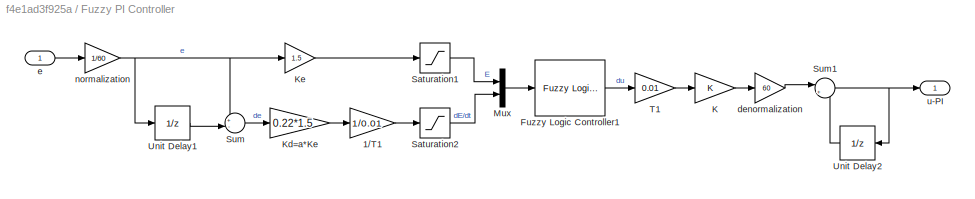
BLOCK [SubSystem] Fuzzy PI Controller
  Ports = [1, 1]
  RequestExecContextInheritance = off
BLOCK [Gain] Fuzzy PI Controller/1//T1
  Gain = 1/0.01
BLOCK [Reference] Fuzzy PI Controller/Fuzzy Logic Controller1  REF=fuzblock/Fuzzy Logic   (lib defined in mdl_858b3b3e7478)
Controller
  Ports = [1, 1]
  SourceBlock = fuzblock/Fuzzy Logic \nController
  SourceProductBaseCode = FL
  SourceType = Fuzzy Inference System
BLOCK [Gain] Fuzzy PI Controller/K
BLOCK [Gain] Fuzzy PI Controller/Kd=a*Ke
  Gain = 0.22*1.5
BLOCK [Gain] Fuzzy PI Controller/Ke
  Gain = 1.5
BLOCK [Mux] Fuzzy PI Controller/Mux
  DisplayOption = bar
  Inputs = 2
  Ports = [2, 1]
BLOCK [Saturate] Fuzzy PI Controller/Saturation1
  LowerLimit = -1
  UpperLimit = 1
BLOCK [Saturate] Fuzzy PI Controller/Saturation2
  LowerLimit = -1
  UpperLimit = 1
BLOCK [Sum] Fuzzy PI Controller/Sum
  Inputs = +-|
  Ports = [2, 1]
BLOCK [Sum] Fuzzy PI Controller/Sum1
  Inputs = |++
  Ports = [2, 1]
BLOCK [Gain] Fuzzy PI Controller/T1
  Gain = 0.01
BLOCK [UnitDelay] Fuzzy PI Controller/Unit Delay1
  HasFrameUpgradeWarning = on
  SampleTime = -1
BLOCK [UnitDelay] Fuzzy PI Controller/Unit Delay2
  HasFrameUpgradeWarning = on
  SampleTime = -1
BLOCK [Gain] Fuzzy PI Controller/denormalization
  Gain = 60
BLOCK [Inport] Fuzzy PI Controller/e
BLOCK [Gain] Fuzzy PI Controller/normalization
  Gain = 1/60
BLOCK [Outport] Fuzzy PI Controller/u-PI
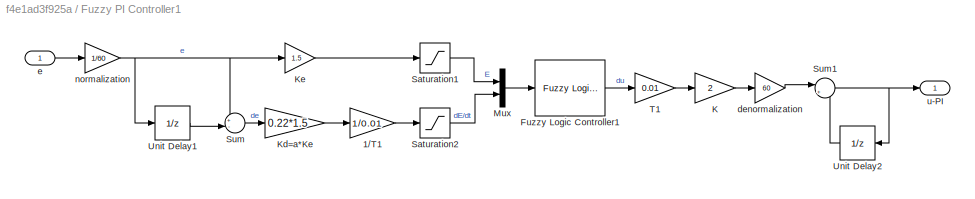
BLOCK [SubSystem] Fuzzy PI Controller1
  Ports = [1, 1]
  RequestExecContextInheritance = off
BLOCK [Gain] Fuzzy PI Controller1/1//T1
  Gain = 1/0.01
BLOCK [Reference] Fuzzy PI Controller1/Fuzzy Logic Controller1  REF=fuzblock/Fuzzy Logic   (lib defined in mdl_858b3b3e7478)
Controller
  Ports = [1, 1]
  SourceBlock = fuzblock/Fuzzy Logic \nController
  SourceProductBaseCode = FL
  SourceType = Fuzzy Inference System
BLOCK [Gain] Fuzzy PI Controller1/K
  Gain = 2
BLOCK [Gain] Fuzzy PI Controller1/Kd=a*Ke
  Gain = 0.22*1.5
BLOCK [Gain] Fuzzy PI Controller1/Ke
  Gain = 1.5
BLOCK [Mux] Fuzzy PI Controller1/Mux
  DisplayOption = bar
  Inputs = 2
  Ports = [2, 1]
BLOCK [Saturate] Fuzzy PI Controller1/Saturation1
  LowerLimit = -1
  UpperLimit = 1
BLOCK [Saturate] Fuzzy PI Controller1/Saturation2
  LowerLimit = -1
  UpperLimit = 1
BLOCK [Sum] Fuzzy PI Controller1/Sum
  Inputs = +-|
  Ports = [2, 1]
BLOCK [Sum] Fuzzy PI Controller1/Sum1
  Inputs = |++
  Ports = [2, 1]
BLOCK [Gain] Fuzzy PI Controller1/T1
  Gain = 0.01
BLOCK [UnitDelay] Fuzzy PI Controller1/Unit Delay1
  HasFrameUpgradeWarning = on
  SampleTime = -1
BLOCK [UnitDelay] Fuzzy PI Controller1/Unit Delay2
  HasFrameUpgradeWarning = on
  SampleTime = -1
BLOCK [Gain] Fuzzy PI Controller1/denormalization
  Gain = 60
BLOCK [Inport] Fuzzy PI Controller1/e
BLOCK [Gain] Fuzzy PI Controller1/normalization
  Gain = 1/60
BLOCK [Outport] Fuzzy PI Controller1/u-PI
BLOCK [SubSystem] Fuzzy PI Controller2
  Ports = [1, 1]
  RequestExecContextInheritance = off
BLOCK [Gain] Fuzzy PI Controller2/1//T1
  Gain = 1/0.01
BLOCK [Reference] Fuzzy PI Controller2/Fuzzy Logic Controller1  REF=fuzblock/Fuzzy Logic   (lib defined in mdl_858b3b3e7478)
Controller
  Ports = [1, 1]
  SourceBlock = fuzblock/Fuzzy Logic \nController
  SourceProductBaseCode = FL
  SourceType = Fuzzy Inference System
BLOCK [Gain] Fuzzy PI Controller2/K
  Gain = 5
BLOCK [Gain] Fuzzy PI Controller2/Kd=a*Ke
  Gain = 0.22*1.5
BLOCK [Gain] Fuzzy PI Controller2/Ke
  Gain = 1.5
BLOCK [Mux] Fuzzy PI Controller2/Mux
  DisplayOption = bar
  Inputs = 2
  Ports = [2, 1]
BLOCK [Saturate] Fuzzy PI Controller2/Saturation1
  LowerLimit = -1
  UpperLimit = 1
BLOCK [Saturate] Fuzzy PI Controller2/Saturation2
  LowerLimit = -1
  UpperLimit = 1
BLOCK [Sum] Fuzzy PI Controller2/Sum
  Inputs = +-|
  Ports = [2, 1]
BLOCK [Sum] Fuzzy PI Controller2/Sum1
  Inputs = |++
  Ports = [2, 1]
BLOCK [Gain] Fuzzy PI Controller2/T1
  Gain = 0.01
BLOCK [UnitDelay] Fuzzy PI Controller2/Unit Delay1
  HasFrameUpgradeWarning = on
  SampleTime = -1
BLOCK [UnitDelay] Fuzzy PI Controller2/Unit Delay2
  HasFrameUpgradeWarning = on
  SampleTime = -1
BLOCK [Gain] Fuzzy PI Controller2/denormalization
  Gain = 60
BLOCK [Inport] Fuzzy PI Controller2/e
BLOCK [Gain] Fuzzy PI Controller2/normalization
  Gain = 1/60
BLOCK [Outport] Fuzzy PI Controller2/u-PI
BLOCK [SubSystem] Fuzzy PI Controller3
  Ports = [1, 1]
  RequestExecContextInheritance = off
BLOCK [Gain] Fuzzy PI Controller3/1//T1
  Gain = 1/0.01
BLOCK [Reference] Fuzzy PI Controller3/Fuzzy Logic Controller1  REF=fuzblock/Fuzzy Logic   (lib defined in mdl_858b3b3e7478)
Controller
  Ports = [1, 1]
  SourceBlock = fuzblock/Fuzzy Logic \nController
  SourceProductBaseCode = FL
  SourceType = Fuzzy Inference System
BLOCK [Gain] Fuzzy PI Controller3/K
  Gain = 15
BLOCK [Gain] Fuzzy PI Controller3/Kd=a*Ke
  Gain = 0.22*1.5
BLOCK [Gain] Fuzzy PI Controller3/Ke
  Gain = 1.5
BLOCK [Mux] Fuzzy PI Controller3/Mux
  DisplayOption = bar
  Inputs = 2
  Ports = [2, 1]
BLOCK [Saturate] Fuzzy PI Controller3/Saturation1
  LowerLimit = -1
  UpperLimit = 1
BLOCK [Saturate] Fuzzy PI Controller3/Saturation2
  LowerLimit = -1
  UpperLimit = 1
BLOCK [Sum] Fuzzy PI Controller3/Sum
  Inputs = +-|
  Ports = [2, 1]
BLOCK [Sum] Fuzzy PI Controller3/Sum1
  Inputs = |++
  Ports = [2, 1]
BLOCK [Gain] Fuzzy PI Controller3/T1
  Gain = 0.01
BLOCK [UnitDelay] Fuzzy PI Controller3/Unit Delay1
  HasFrameUpgradeWarning = on
  SampleTime = -1
BLOCK [UnitDelay] Fuzzy PI Controller3/Unit Delay2
  HasFrameUpgradeWarning = on
  SampleTime = -1
BLOCK [Gain] Fuzzy PI Controller3/denormalization
  Gain = 60
BLOCK [Inport] Fuzzy PI Controller3/e
BLOCK [Gain] Fuzzy PI Controller3/normalization
  Gain = 1/60
BLOCK [Outport] Fuzzy PI Controller3/u-PI
BLOCK [SubSystem] Fuzzy PI Controller4
  Ports = [1, 1]
  RequestExecContextInheritance = off
BLOCK [Gain] Fuzzy PI Controller4/1//T1
  Gain = 1/0.01
BLOCK [Reference] Fuzzy PI Controller4/Fuzzy Logic Controller1  REF=fuzblock/Fuzzy Logic   (lib defined in mdl_858b3b3e7478)
Controller
  Ports = [1, 1]
  SourceBlock = fuzblock/Fuzzy Logic \nController
  SourceProductBaseCode = FL
  SourceType = Fuzzy Inference System
BLOCK [Gain] Fuzzy PI Controller4/K
  Gain = 30
BLOCK [Gain] Fuzzy PI Controller4/Kd=a*Ke
  Gain = 0.22*1.5
BLOCK [Gain] Fuzzy PI Controller4/Ke
  Gain = 1.5
BLOCK [Mux] Fuzzy PI Controller4/Mux
  DisplayOption = bar
  Inputs = 2
  Ports = [2, 1]
BLOCK [Saturate] Fuzzy PI Controller4/Saturation1
  LowerLimit = -1
  UpperLimit = 1
BLOCK [Saturate] Fuzzy PI Controller4/Saturation2
  LowerLimit = -1
  UpperLimit = 1
BLOCK [Sum] Fuzzy PI Controller4/Sum
  Inputs = +-|
  Ports = [2, 1]
BLOCK [Sum] Fuzzy PI Controller4/Sum1
  Inputs = |++
  Ports = [2, 1]
BLOCK [Gain] Fuzzy PI Controller4/T1
  Gain = 0.01
BLOCK [UnitDelay] Fuzzy PI Controller4/Unit Delay1
  HasFrameUpgradeWarning = on
  SampleTime = -1
BLOCK [UnitDelay] Fuzzy PI Controller4/Unit Delay2
  HasFrameUpgradeWarning = on
  SampleTime = -1
BLOCK [Gain] Fuzzy PI Controller4/denormalization
  Gain = 60
BLOCK [Inport] Fuzzy PI Controller4/e
BLOCK [Gain] Fuzzy PI Controller4/normalization
  Gain = 1/60
BLOCK [Outport] Fuzzy PI Controller4/u-PI
BLOCK [SubSystem] Fuzzy PI Controller5
  Ports = [1, 1]
  RequestExecContextInheritance = off
BLOCK [Gain] Fuzzy PI Controller5/1//T1
  Gain = 1/0.01
BLOCK [Reference] Fuzzy PI Controller5/Fuzzy Logic Controller1  REF=fuzblock/Fuzzy Logic   (lib defined in mdl_858b3b3e7478)
Controller
  Ports = [1, 1]
  SourceBlock = fuzblock/Fuzzy Logic \nController
  SourceProductBaseCode = FL
  SourceType = Fuzzy Inference System
BLOCK [Gain] Fuzzy PI Controller5/K
  Gain = 50
BLOCK [Gain] Fuzzy PI Controller5/Kd=a*Ke
  Gain = 0.22*1.5
BLOCK [Gain] Fuzzy PI Controller5/Ke
  Gain = 1.5
BLOCK [Mux] Fuzzy PI Controller5/Mux
  DisplayOption = bar
  Inputs = 2
  Ports = [2, 1]
BLOCK [Saturate] Fuzzy PI Controller5/Saturation1
  LowerLimit = -1
  UpperLimit = 1
BLOCK [Saturate] Fuzzy PI Controller5/Saturation2
  LowerLimit = -1
  UpperLimit = 1
BLOCK [Sum] Fuzzy PI Controller5/Sum
  Inputs = +-|
  Ports = [2, 1]
BLOCK [Sum] Fuzzy PI Controller5/Sum1
  Inputs = |++
  Ports = [2, 1]
BLOCK [Gain] Fuzzy PI Controller5/T1
  Gain = 0.01
BLOCK [UnitDelay] Fuzzy PI Controller5/Unit Delay1
  HasFrameUpgradeWarning = on
  SampleTime = -1
BLOCK [UnitDelay] Fuzzy PI Controller5/Unit Delay2
  HasFrameUpgradeWarning = on
  SampleTime = -1
BLOCK [Gain] Fuzzy PI Controller5/denormalization
  Gain = 60
BLOCK [Inport] Fuzzy PI Controller5/e
BLOCK [Gain] Fuzzy PI Controller5/normalization
  Gain = 1/60
BLOCK [Outport] Fuzzy PI Controller5/u-PI
BLOCK [Mux] Mux
  DisplayOption = bar
  Inputs = 7
  Ports = [7, 1]
BLOCK [Scope] Scope
  Floating = off
  NumInputPorts = 1
  Ports = [1]
  ScopeSpecificationString = Simulink.scopes.TimeScopeBlockCfg('CurrentConfiguration', extmgr.ConfigurationSet(extmgr.Configuration('Core','General UI',true),extmgr.Configuration('Core','Source UI',true),extmgr.Configuration('Sources','WiredSimulink',true),extmgr.Configuration('Visuals','Time Domain',true,'TimeAxisLabels','All','SerializedDisplays',{struct('MinYLimReal','-12.31967','MaxYLimReal','110.87707','YLabelReal','(deg...<+1862ch>
BLOCK [Step] Step
  After = 60
  SampleTime = 0.01
  Time = 0
BLOCK [Sum] Sum
  Inputs = |+-
  Ports = [2, 1]
BLOCK [Sum] Sum1
  Inputs = |+-
  Ports = [2, 1]
BLOCK [Sum] Sum2
  Inputs = |+-
  Ports = [2, 1]
BLOCK [Sum] Sum3
  Inputs = |+-
  Ports = [2, 1]
BLOCK [Sum] Sum4
  Inputs = |+-
  Ports = [2, 1]
BLOCK [Sum] Sum5
  Inputs = |+-
  Ports = [2, 1]
BLOCK [TransferFcn] System
  Denominator = [1 10 9]
  Numerator = [10]
BLOCK [TransferFcn] System1
  Denominator = [1 10 9]
  Numerator = [10]
BLOCK [TransferFcn] System2
  Denominator = [1 10 9]
  Numerator = [10]
BLOCK [TransferFcn] System3
  Denominator = [1 10 9]
  Numerator = [10]
BLOCK [TransferFcn] System4
  Denominator = [1 10 9]
  Numerator = [10]
BLOCK [TransferFcn] System5
  Denominator = [1 10 9]
  Numerator = [10]
BLOCK [ZeroOrderHold] Zero-Order Hold
  SampleTime = 0.01
BLOCK [ZeroOrderHold] Zero-Order Hold1
  SampleTime = 0.01
BLOCK [ZeroOrderHold] Zero-Order Hold2
  SampleTime = 0.01
BLOCK [ZeroOrderHold] Zero-Order Hold3
  SampleTime = 0.01
BLOCK [ZeroOrderHold] Zero-Order Hold4
  SampleTime = 0.01
BLOCK [ZeroOrderHold] Zero-Order Hold5
  SampleTime = 0.01
ANNOTATION (root): Computational Intelligence Task 1 Anastasios Gramemnos 9212 <email> March 2022
ANNOTATION (root): control input
ANNOTATION (root): setpoint
LINE Fuzzy PI Controller/1//T1:1 -> Fuzzy PI Controller/Saturation2:1
LINE Fuzzy PI Controller/Fuzzy Logic Controller1:1 -> Fuzzy PI Controller/T1:1
LINE Fuzzy PI Controller/K:1 -> Fuzzy PI Controller/denormalization:1
LINE Fuzzy PI Controller/Kd=a*Ke:1 -> Fuzzy PI Controller/1//T1:1
LINE Fuzzy PI Controller/Ke:1 -> Fuzzy PI Controller/Saturation1:1
LINE Fuzzy PI Controller/Mux:1 -> Fuzzy PI Controller/Fuzzy Logic Controller1:1
LINE Fuzzy PI Controller/Saturation1:1 -> Fuzzy PI Controller/Mux:1
LINE Fuzzy PI Controller/Saturation2:1 -> Fuzzy PI Controller/Mux:2
NET Fuzzy PI Controller/Sum1:1 -> Fuzzy PI Controller/Unit Delay2:1, Fuzzy PI Controller/u-PI:1
LINE Fuzzy PI Controller/Sum:1 -> Fuzzy PI Controller/Kd=a*Ke:1
LINE Fuzzy PI Controller/T1:1 -> Fuzzy PI Controller/K:1
LINE Fuzzy PI Controller/Unit Delay1:1 -> Fuzzy PI Controller/Sum:2
LINE Fuzzy PI Controller/Unit Delay2:1 -> Fuzzy PI Controller/Sum1:2
LINE Fuzzy PI Controller/denormalization:1 -> Fuzzy PI Controller/Sum1:1
LINE Fuzzy PI Controller/e:1 -> Fuzzy PI Controller/normalization:1
NET Fuzzy PI Controller/normalization:1 -> Fuzzy PI Controller/Ke:1, Fuzzy PI Controller/Sum:1, Fuzzy PI Controller/Unit Delay1:1
LINE Fuzzy PI Controller1/1//T1:1 -> Fuzzy PI Controller1/Saturation2:1
LINE Fuzzy PI Controller1/Fuzzy Logic Controller1:1 -> Fuzzy PI Controller1/T1:1
LINE Fuzzy PI Controller1/K:1 -> Fuzzy PI Controller1/denormalization:1
LINE Fuzzy PI Controller1/Kd=a*Ke:1 -> Fuzzy PI Controller1/1//T1:1
LINE Fuzzy PI Controller1/Ke:1 -> Fuzzy PI Controller1/Saturation1:1
LINE Fuzzy PI Controller1/Mux:1 -> Fuzzy PI Controller1/Fuzzy Logic Controller1:1
LINE Fuzzy PI Controller1/Saturation1:1 -> Fuzzy PI Controller1/Mux:1
LINE Fuzzy PI Controller1/Saturation2:1 -> Fuzzy PI Controller1/Mux:2
NET Fuzzy PI Controller1/Sum1:1 -> Fuzzy PI Controller1/Unit Delay2:1, Fuzzy PI Controller1/u-PI:1
LINE Fuzzy PI Controller1/Sum:1 -> Fuzzy PI Controller1/Kd=a*Ke:1
LINE Fuzzy PI Controller1/T1:1 -> Fuzzy PI Controller1/K:1
LINE Fuzzy PI Controller1/Unit Delay1:1 -> Fuzzy PI Controller1/Sum:2
LINE Fuzzy PI Controller1/Unit Delay2:1 -> Fuzzy PI Controller1/Sum1:2
LINE Fuzzy PI Controller1/denormalization:1 -> Fuzzy PI Controller1/Sum1:1
LINE Fuzzy PI Controller1/e:1 -> Fuzzy PI Controller1/normalization:1
NET Fuzzy PI Controller1/normalization:1 -> Fuzzy PI Controller1/Ke:1, Fuzzy PI Controller1/Sum:1, Fuzzy PI Controller1/Unit Delay1:1
LINE Fuzzy PI Controller1:1 -> Zero-Order Hold1:1
LINE Fuzzy PI Controller2/1//T1:1 -> Fuzzy PI Controller2/Saturation2:1
LINE Fuzzy PI Controller2/Fuzzy Logic Controller1:1 -> Fuzzy PI Controller2/T1:1
LINE Fuzzy PI Controller2/K:1 -> Fuzzy PI Controller2/denormalization:1
LINE Fuzzy PI Controller2/Kd=a*Ke:1 -> Fuzzy PI Controller2/1//T1:1
LINE Fuzzy PI Controller2/Ke:1 -> Fuzzy PI Controller2/Saturation1:1
LINE Fuzzy PI Controller2/Mux:1 -> Fuzzy PI Controller2/Fuzzy Logic Controller1:1
LINE Fuzzy PI Controller2/Saturation1:1 -> Fuzzy PI Controller2/Mux:1
LINE Fuzzy PI Controller2/Saturation2:1 -> Fuzzy PI Controller2/Mux:2
NET Fuzzy PI Controller2/Sum1:1 -> Fuzzy PI Controller2/Unit Delay2:1, Fuzzy PI Controller2/u-PI:1
LINE Fuzzy PI Controller2/Sum:1 -> Fuzzy PI Controller2/Kd=a*Ke:1
LINE Fuzzy PI Controller2/T1:1 -> Fuzzy PI Controller2/K:1
LINE Fuzzy PI Controller2/Unit Delay1:1 -> Fuzzy PI Controller2/Sum:2
LINE Fuzzy PI Controller2/Unit Delay2:1 -> Fuzzy PI Controller2/Sum1:2
LINE Fuzzy PI Controller2/denormalization:1 -> Fuzzy PI Controller2/Sum1:1
LINE Fuzzy PI Controller2/e:1 -> Fuzzy PI Controller2/normalization:1
NET Fuzzy PI Controller2/normalization:1 -> Fuzzy PI Controller2/Ke:1, Fuzzy PI Controller2/Sum:1, Fuzzy PI Controller2/Unit Delay1:1
LINE Fuzzy PI Controller2:1 -> Zero-Order Hold2:1
LINE Fuzzy PI Controller3/1//T1:1 -> Fuzzy PI Controller3/Saturation2:1
LINE Fuzzy PI Controller3/Fuzzy Logic Controller1:1 -> Fuzzy PI Controller3/T1:1
LINE Fuzzy PI Controller3/K:1 -> Fuzzy PI Controller3/denormalization:1
LINE Fuzzy PI Controller3/Kd=a*Ke:1 -> Fuzzy PI Controller3/1//T1:1
LINE Fuzzy PI Controller3/Ke:1 -> Fuzzy PI Controller3/Saturation1:1
LINE Fuzzy PI Controller3/Mux:1 -> Fuzzy PI Controller3/Fuzzy Logic Controller1:1
LINE Fuzzy PI Controller3/Saturation1:1 -> Fuzzy PI Controller3/Mux:1
LINE Fuzzy PI Controller3/Saturation2:1 -> Fuzzy PI Controller3/Mux:2
NET Fuzzy PI Controller3/Sum1:1 -> Fuzzy PI Controller3/Unit Delay2:1, Fuzzy PI Controller3/u-PI:1
LINE Fuzzy PI Controller3/Sum:1 -> Fuzzy PI Controller3/Kd=a*Ke:1
LINE Fuzzy PI Controller3/T1:1 -> Fuzzy PI Controller3/K:1
LINE Fuzzy PI Controller3/Unit Delay1:1 -> Fuzzy PI Controller3/Sum:2
LINE Fuzzy PI Controller3/Unit Delay2:1 -> Fuzzy PI Controller3/Sum1:2
LINE Fuzzy PI Controller3/denormalization:1 -> Fuzzy PI Controller3/Sum1:1
LINE Fuzzy PI Controller3/e:1 -> Fuzzy PI Controller3/normalization:1
NET Fuzzy PI Controller3/normalization:1 -> Fuzzy PI Controller3/Ke:1, Fuzzy PI Controller3/Sum:1, Fuzzy PI Controller3/Unit Delay1:1
LINE Fuzzy PI Controller3:1 -> Zero-Order Hold3:1
LINE Fuzzy PI Controller4/1//T1:1 -> Fuzzy PI Controller4/Saturation2:1
LINE Fuzzy PI Controller4/Fuzzy Logic Controller1:1 -> Fuzzy PI Controller4/T1:1
LINE Fuzzy PI Controller4/K:1 -> Fuzzy PI Controller4/denormalization:1
LINE Fuzzy PI Controller4/Kd=a*Ke:1 -> Fuzzy PI Controller4/1//T1:1
LINE Fuzzy PI Controller4/Ke:1 -> Fuzzy PI Controller4/Saturation1:1
LINE Fuzzy PI Controller4/Mux:1 -> Fuzzy PI Controller4/Fuzzy Logic Controller1:1
LINE Fuzzy PI Controller4/Saturation1:1 -> Fuzzy PI Controller4/Mux:1
LINE Fuzzy PI Controller4/Saturation2:1 -> Fuzzy PI Controller4/Mux:2
NET Fuzzy PI Controller4/Sum1:1 -> Fuzzy PI Controller4/Unit Delay2:1, Fuzzy PI Controller4/u-PI:1
LINE Fuzzy PI Controller4/Sum:1 -> Fuzzy PI Controller4/Kd=a*Ke:1
LINE Fuzzy PI Controller4/T1:1 -> Fuzzy PI Controller4/K:1
LINE Fuzzy PI Controller4/Unit Delay1:1 -> Fuzzy PI Controller4/Sum:2
LINE Fuzzy PI Controller4/Unit Delay2:1 -> Fuzzy PI Controller4/Sum1:2
LINE Fuzzy PI Controller4/denormalization:1 -> Fuzzy PI Controller4/Sum1:1
LINE Fuzzy PI Controller4/e:1 -> Fuzzy PI Controller4/normalization:1
NET Fuzzy PI Controller4/normalization:1 -> Fuzzy PI Controller4/Ke:1, Fuzzy PI Controller4/Sum:1, Fuzzy PI Controller4/Unit Delay1:1
LINE Fuzzy PI Controller4:1 -> Zero-Order Hold4:1
LINE Fuzzy PI Controller5/1//T1:1 -> Fuzzy PI Controller5/Saturation2:1
LINE Fuzzy PI Controller5/Fuzzy Logic Controller1:1 -> Fuzzy PI Controller5/T1:1
LINE Fuzzy PI Controller5/K:1 -> Fuzzy PI Controller5/denormalization:1
LINE Fuzzy PI Controller5/Kd=a*Ke:1 -> Fuzzy PI Controller5/1//T1:1
LINE Fuzzy PI Controller5/Ke:1 -> Fuzzy PI Controller5/Saturation1:1
LINE Fuzzy PI Controller5/Mux:1 -> Fuzzy PI Controller5/Fuzzy Logic Controller1:1
LINE Fuzzy PI Controller5/Saturation1:1 -> Fuzzy PI Controller5/Mux:1
LINE Fuzzy PI Controller5/Saturation2:1 -> Fuzzy PI Controller5/Mux:2
NET Fuzzy PI Controller5/Sum1:1 -> Fuzzy PI Controller5/Unit Delay2:1, Fuzzy PI Controller5/u-PI:1
LINE Fuzzy PI Controller5/Sum:1 -> Fuzzy PI Controller5/Kd=a*Ke:1
LINE Fuzzy PI Controller5/T1:1 -> Fuzzy PI Controller5/K:1
LINE Fuzzy PI Controller5/Unit Delay1:1 -> Fuzzy PI Controller5/Sum:2
LINE Fuzzy PI Controller5/Unit Delay2:1 -> Fuzzy PI Controller5/Sum1:2
LINE Fuzzy PI Controller5/denormalization:1 -> Fuzzy PI Controller5/Sum1:1
LINE Fuzzy PI Controller5/e:1 -> Fuzzy PI Controller5/normalization:1
NET Fuzzy PI Controller5/normalization:1 -> Fuzzy PI Controller5/Ke:1, Fuzzy PI Controller5/Sum:1, Fuzzy PI Controller5/Unit Delay1:1
LINE Fuzzy PI Controller5:1 -> Zero-Order Hold5:1
LINE Fuzzy PI Controller:1 -> Zero-Order Hold:1
LINE Mux:1 -> Scope:1
NET Step:1 -> Mux:1, Sum1:1, Sum2:1, Sum3:1, Sum4:1, Sum5:1, Sum:1
LINE Sum1:1 -> Fuzzy PI Controller1:1
LINE Sum2:1 -> Fuzzy PI Controller2:1
LINE Sum3:1 -> Fuzzy PI Controller3:1
LINE Sum4:1 -> Fuzzy PI Controller4:1
LINE Sum5:1 -> Fuzzy PI Controller5:1
LINE Sum:1 -> Fuzzy PI Controller:1
NET System1:1 -> Mux:3, Sum1:2
NET System2:1 -> Mux:4, Sum2:2
NET System3:1 -> Mux:5, Sum3:2
NET System4:1 -> Mux:6, Sum4:2
NET System5:1 -> Mux:7, Sum5:2
NET System:1 -> Mux:2, Sum:2
LINE Zero-Order Hold1:1 -> System1:1
LINE Zero-Order Hold2:1 -> System2:1
LINE Zero-Order Hold3:1 -> System3:1
LINE Zero-Order Hold4:1 -> System4:1
LINE Zero-Order Hold5:1 -> System5:1
LINE Zero-Order Hold:1 -> System:1
note: NET lines group one-source signal fan-out (src -> all destinations, sorted); 1:1 wires keep LINE
